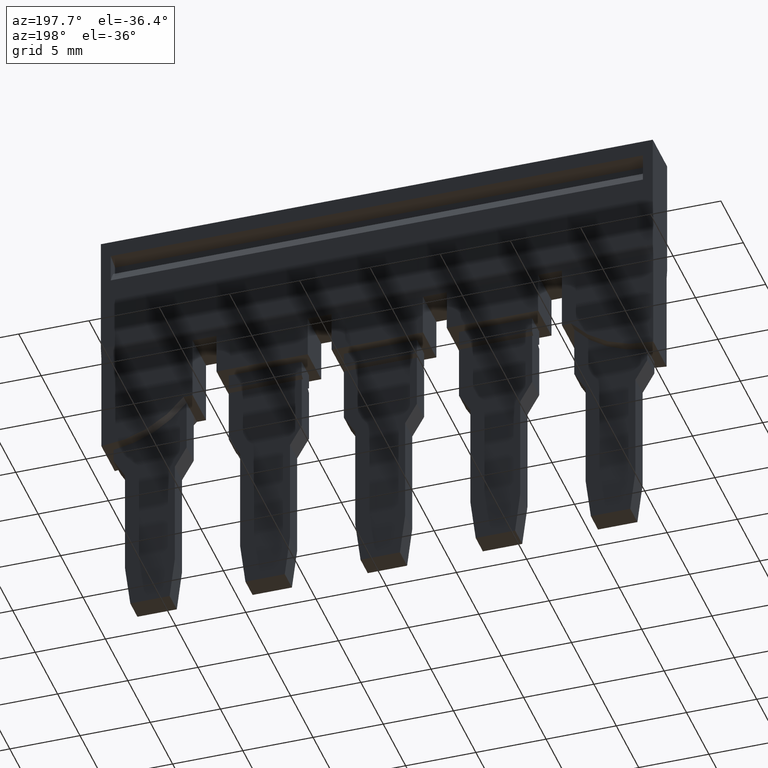
[diagram: clean part render]
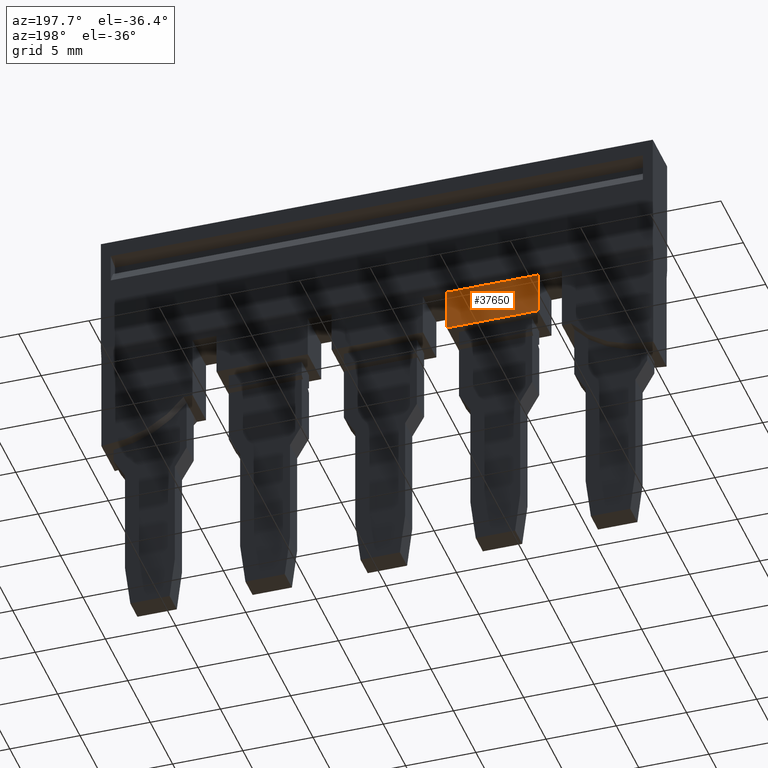
[diagram: same view with one face highlighted and labeled with its STEP entity id]
A machine part, auxiliary view. The second image highlights one B-rep face of the part: STEP entity #37650.
In plain terms, the highlighted planar face has unit normal (0, 1, 0).
Its self-contained STEP definition (entity closure, byte-faithful):
#27270=CARTESIAN_POINT('',(2.68553886079762,-15.4678098181019,
60.2099999999988));
#27280=VERTEX_POINT('',#27270);
#27650=CARTESIAN_POINT('',(2.68553886079762,-18.4678098181019,
66.7099999999988));
#27660=VERTEX_POINT('',#27650);
#27690=CARTESIAN_POINT('',(2.68553886079762,-12.8979338181015,
66.7099999999988));
#27700=DIRECTION('',(0.,1.,0.));
#27710=VECTOR('',#27700,1.);
#27720=LINE('',#27690,#27710);
#27730=CARTESIAN_POINT('',(2.68553886079762,-15.4678098181019,
66.7099999999988));
#27740=VERTEX_POINT('',#27730);
#27750=EDGE_CURVE('',#27660,#27740,#27720,.T.);
#28280=CARTESIAN_POINT('',(2.68553886079762,-18.4678098181019,
47.0749840000005));
#28290=DIRECTION('',(3.08148791101958E-33,-1.23259516440783E-32,-1.));
#28300=VECTOR('',#28290,1.);
#28310=LINE('',#28280,#28300);
#28320=CARTESIAN_POINT('',(2.68553886079762,-18.4678098181019,
60.2099999999988));
#28330=VERTEX_POINT('',#28320);
#28340=EDGE_CURVE('',#27660,#28330,#28310,.T.);
#28970=CARTESIAN_POINT('',(2.68553886079762,1.06581410364015E-14,
60.2099999999988));
#28980=DIRECTION('',(0.,1.,-1.23259516440783E-32));
#28990=VECTOR('',#28980,1.);
#29000=LINE('',#28970,#28990);
#29010=EDGE_CURVE('',#28330,#27280,#29000,.T.);
#37490=CARTESIAN_POINT('',(2.68553886079762,-7.40918380731544,
34.9444836175011));
#37500=DIRECTION('',(-1.,-0.,-3.08148791101958E-33));
#37510=DIRECTION('',(0.,-1.,0.));
#37520=AXIS2_PLACEMENT_3D('',#37490,#37500,#37510);
#37530=PLANE('',#37520);
#37540=CARTESIAN_POINT('',(2.68553886079762,-15.4678098181019,
47.0749840000005));
#37550=DIRECTION('',(3.08148791101958E-33,-1.23259516440783E-32,-1.));
#37560=VECTOR('',#37550,1.);
#37570=LINE('',#37540,#37560);
#37580=EDGE_CURVE('',#27740,#27280,#37570,.T.);
#37590=ORIENTED_EDGE('',*,*,#37580,.T.);
#37600=ORIENTED_EDGE('',*,*,#27750,.T.);
#37610=ORIENTED_EDGE('',*,*,#28340,.F.);
#37620=ORIENTED_EDGE('',*,*,#29010,.F.);
#37630=EDGE_LOOP('',(#37620,#37610,#37600,#37590));
#37640=FACE_OUTER_BOUND('',#37630,.T.);
#37650=ADVANCED_FACE('',(#37640),#37530,.T.);